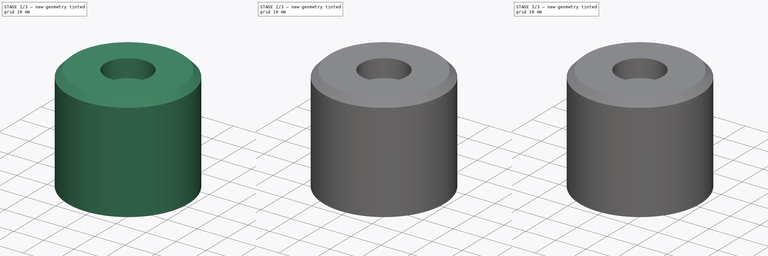
[diagram: build sequence overview — one tinted view per stage of 3, left to right]
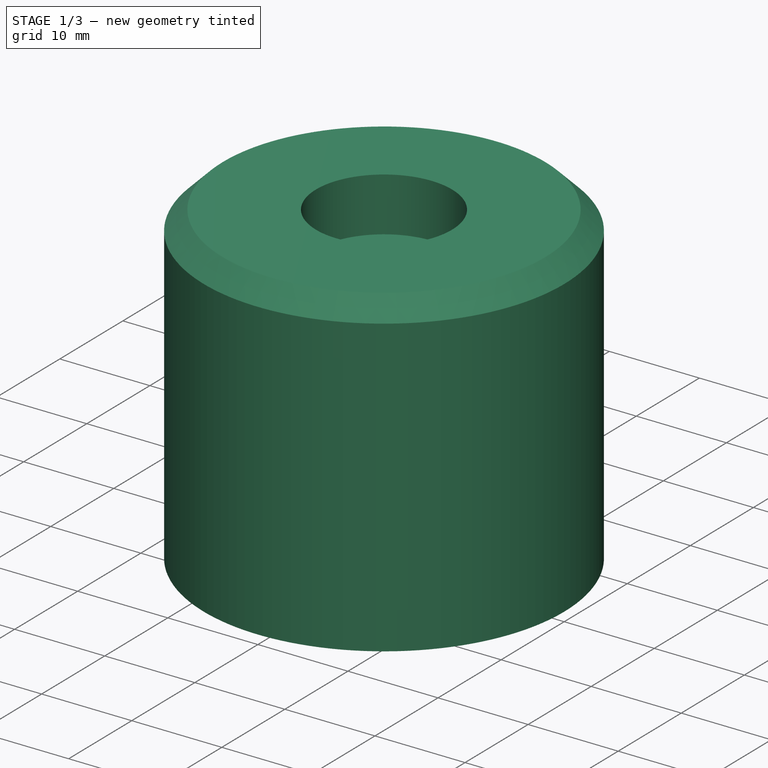
[diagram: stage 1 of 3 — iso view after this stage's code; geometry added in this stage tinted green]
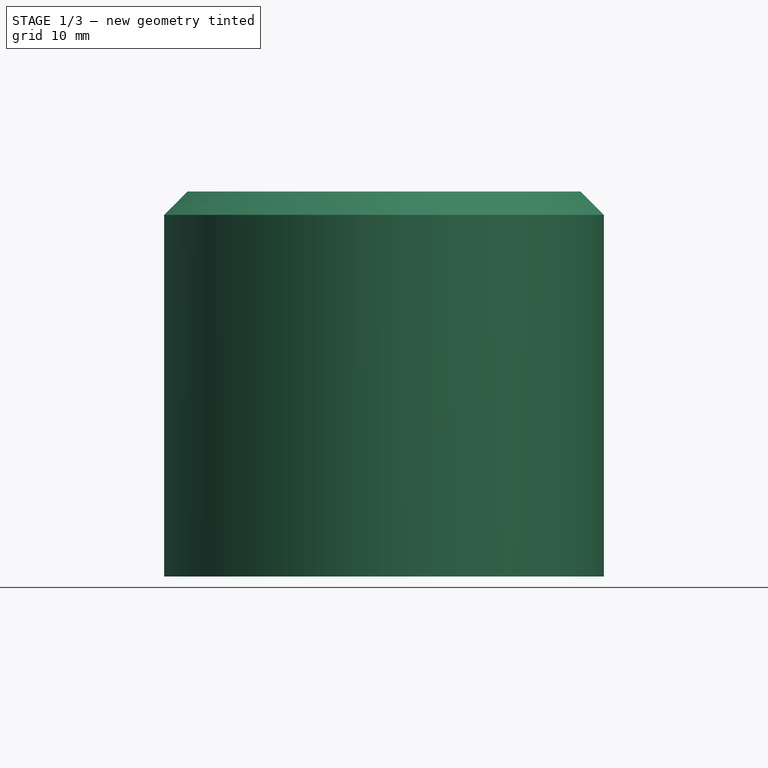
[diagram: stage 1 of 3 — front view after this stage's code; geometry added in this stage tinted green]
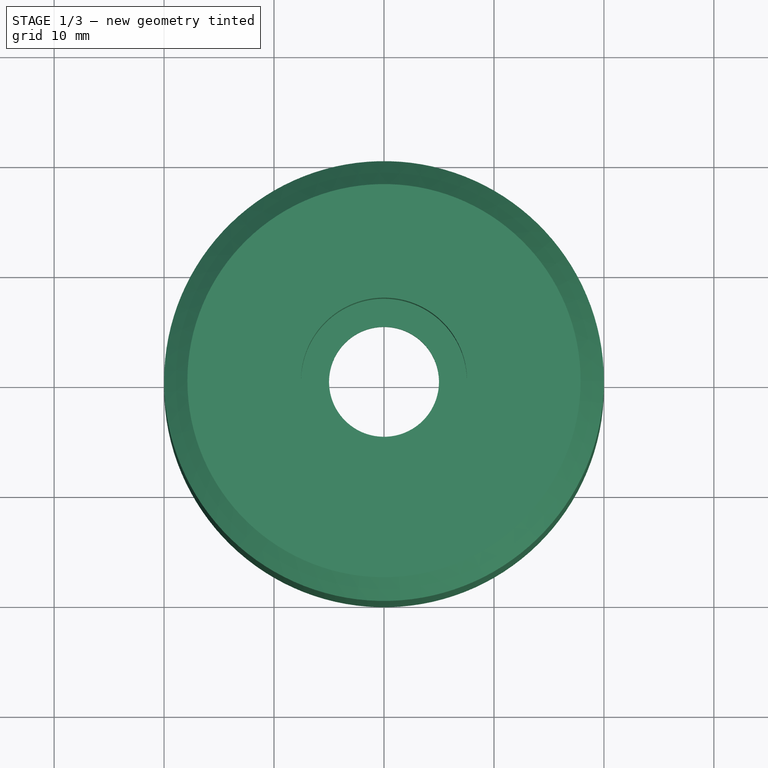
[diagram: stage 1 of 3 — top view after this stage's code; geometry added in this stage tinted green]
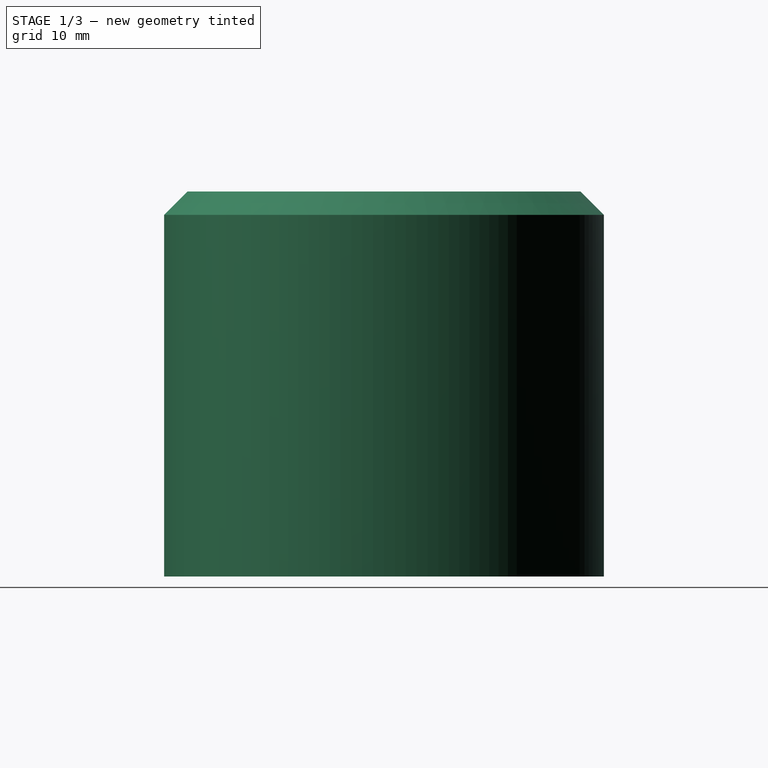
[diagram: stage 1 of 3 — right view after this stage's code; geometry added in this stage tinted green]
FCSTD DOCUMENT  (FreeCAD 0.19R24291 (Git))
Label: windSensorHousingv2
License: All rights reserved
LicenseURL: http://en.wikipedia.org/wiki/All_rights_reserved
objects: Sketcher::SketchObject×5, PartDesign::Plane×2, PartDesign::Pad×2, PartDesign::Pocket×2, PartDesign::Revolution×1, PartDesign::Chamfer×1, PartDesign::Body×1
note: 20 computed .brp shape members not serialized (recipe doc carries the construction recipe); baked Part::Feature solids carry a one-line shape summary decoded from their .brp

FEATURE [Sketcher::SketchObject] Sketch
  FullyConstrained = true
  MapMode = 5
  Placement = pos=(0,0,0) rot=(1,0,0;1.5708rad)
  Support = -> [XZ_Plane]
  sketch-geometry (16):
    g0: LineSegment StartX=18.5 StartY=0 StartZ=0 EndX=20 EndY=0 EndZ=0
    g1: LineSegment StartX=20 StartY=0 StartZ=0 EndX=20 EndY=32.8787 EndZ=0
    g2: LineSegment StartX=20 StartY=32.8787 StartZ=0 EndX=17.8787 EndY=35 EndZ=0
    g3: LineSegment StartX=17.8787 StartY=35 StartZ=0 EndX=7.55 EndY=35 EndZ=0
    g4: LineSegment StartX=7.55 StartY=35 StartZ=0 EndX=7.55 EndY=29 EndZ=0
    g5: LineSegment StartX=7.55 StartY=29 StartZ=0 EndX=5 EndY=29 EndZ=0
    g6: LineSegment StartX=5 StartY=29 StartZ=0 EndX=5 EndY=27.5 EndZ=0
    g7: LineSegment StartX=5 StartY=27.5 StartZ=0 EndX=9.05 EndY=27.5 EndZ=0
    g8: LineSegment StartX=9.05 StartY=27.5 StartZ=0 EndX=9.05 EndY=33.5 EndZ=0
    g9: LineSegment StartX=9.05 StartY=33.5 StartZ=0 EndX=17.2574 EndY=33.5 EndZ=0
    g10: LineSegment StartX=17.2574 StartY=33.5 StartZ=0 EndX=18.5 EndY=32.2574 EndZ=0
    g11: LineSegment StartX=18.5 StartY=32.2574 StartZ=0 EndX=18.5 EndY=0 EndZ=0
    g12: LineSegment StartX=7.55 StartY=29 StartZ=0 EndX=7.55 EndY=27.5 EndZ=0
    g13: LineSegment StartX=9.05 StartY=33.5 StartZ=0 EndX=7.55 EndY=33.5 EndZ=0
    g14: LineSegment StartX=18.2322 StartY=32.5251 StartZ=0 EndX=19.2929 EndY=33.5858 EndZ=0
    g15: LineSegment StartX=9.05 StartY=33.5 StartZ=0 EndX=9.05 EndY=35 EndZ=0
  constraints (48):
    c: PointOnObject(g0,g-1)
    c: PointOnObject(g0,g-1)
    c: Coincident(g1,g0)
    c: Vertical(g1)
    c: Coincident(g2,g1)
    c: Coincident(g3,g2)
    c: Horizontal(g3)
    c: Coincident(g4,g3)
    c: Vertical(g4)
    c: Coincident(g5,g4)
    c: Horizontal(g5)
    c: Coincident(g6,g5)
    c: Vertical(g6)
    c: Coincident(g7,g6)
    c: Horizontal(g7)
    c: Coincident(g8,g7)
    c: Vertical(g8)
    c: Coincident(g9,g8)
    c: Horizontal(g9)
    c: Coincident(g10,g9)
    c: Coincident(g11,g10)
    c: Coincident(g11,g0)
    c: Vertical(g11)
    c: Coincident(g12,g4)
    c: PointOnObject(g12,g7)
    c: Vertical(g12)
    c: Coincident(g13,g8)
    c: PointOnObject(g13,g4)
    c: Horizontal(g13)
    c: PointOnObject(g14,g10)
    c: Parallel(g10,g2)
    c: Perpendicular(g14,g2) = 1.5708
    c: Equal(g12,g13)
    c: Equal(g13,g14)
    c: Equal(g14,g0)
    c: DistanceY(g6,g6) = 1.5
    c: PointOnObject(g15,g3)
    c: Vertical(g15)
    c: Equal(g15,g13)
    c: DistanceY(g4,g4) = 6
    c: Angle(g10,g11) = 2.35619
    c: Distance(g2) = 3
    c: DistanceY(g0,g2) = 35
    c: DistanceX(g-1,g6) = 5
    c: DistanceX(g-1,g3) = 7.55
    c: DistanceX(g-1,g0) = 20
    c: Distance(g14,g2) = 2
    c: Coincident(g15,g8)
FEATURE [PartDesign::Revolution] Revolution
  Angle = 360
  Axis = (0,2e-16,1)
  Base = (0,0,0)
  Placement = pos=(0,0,0) rot=(1,0,0;1.5708rad)
  Profile = -> Sketch
  ReferenceAxis = -> Sketch [V_Axis]
  Reversed = true
FEATURE [PartDesign::Plane] DatumPlane
  AttachmentOffset = pos=(0,0,1) rot=(0,0,1;0rad)
  Length = 60
  MapMode = 45
  Placement = pos=(3e-16,2.12e-14,31.8715) rot=(0,1,0;3.14159rad)
  ResizeMode = 0
  Support = -> [Revolution]
  Width = 60
FEATURE [Sketcher::SketchObject] Sketch001
  FullyConstrained = true
  MapMode = 5
  Placement = pos=(3e-16,2.12e-14,31.8715) rot=(0,1,0;3.14159rad)
  Support = -> [DatumPlane]
  sketch-geometry (4):
    g0: ArcOfCircle CenterX=0 CenterY=0 CenterZ=0 NormalX=0 NormalY=0 NormalZ=1 AngleXU=0 Radius=18.5 StartAngle=5.86576 EndAngle=6.70061
    g1: LineSegment StartX=16.9115 StartY=7.5 StartZ=0 EndX=13.7115 EndY=7.5 EndZ=0
    g2: LineSegment StartX=13.7115 StartY=7.5 StartZ=0 EndX=13.7115 EndY=-7.5 EndZ=0
    g3: LineSegment StartX=13.7115 StartY=-7.5 StartZ=0 EndX=16.9115 EndY=-7.5 EndZ=0
  constraints (11):
    c: Coincident(g0,g-1)
    c: Horizontal(g1)
    c: Coincident(g2,g1)
    c: Coincident(g3,g2)
    c: Horizontal(g3)
    c: Symmetric(g2,g1,g-1)
    c: DistanceY(g2,g2) = 15
    c: DistanceX(g1,g1) = 3.2
    c: Radius(g0) = 18.5
    c: Coincident(g0,g3)
    c: Coincident(g0,g1)
FEATURE [PartDesign::Pad] Pad
  BaseFeature = -> Revolution
  Direction = (1,1,1)
  Length = 20
  Length2 = 100
  Placement = pos=(0,0,0) rot=(1,0,0;1.5708rad)
  Profile = -> Sketch001
  Type = 0
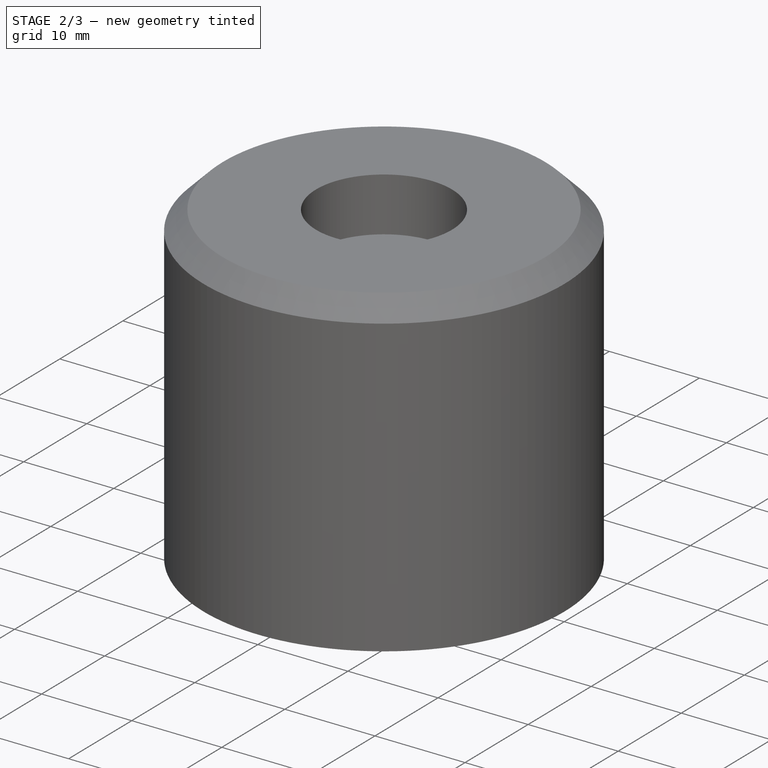
[diagram: stage 2 of 3 — iso view after this stage's code; geometry added in this stage tinted green]
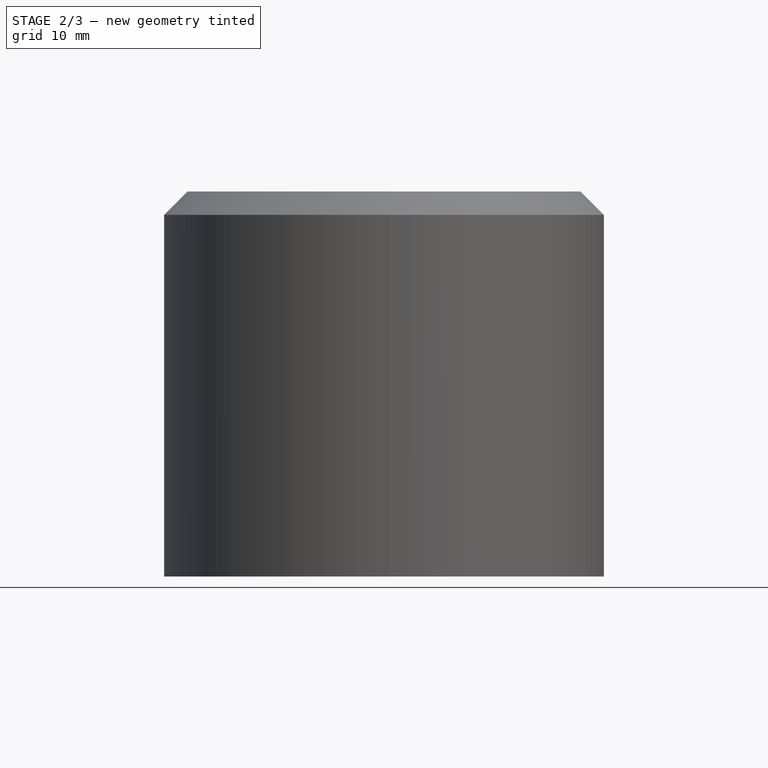
[diagram: stage 2 of 3 — front view after this stage's code; geometry added in this stage tinted green]
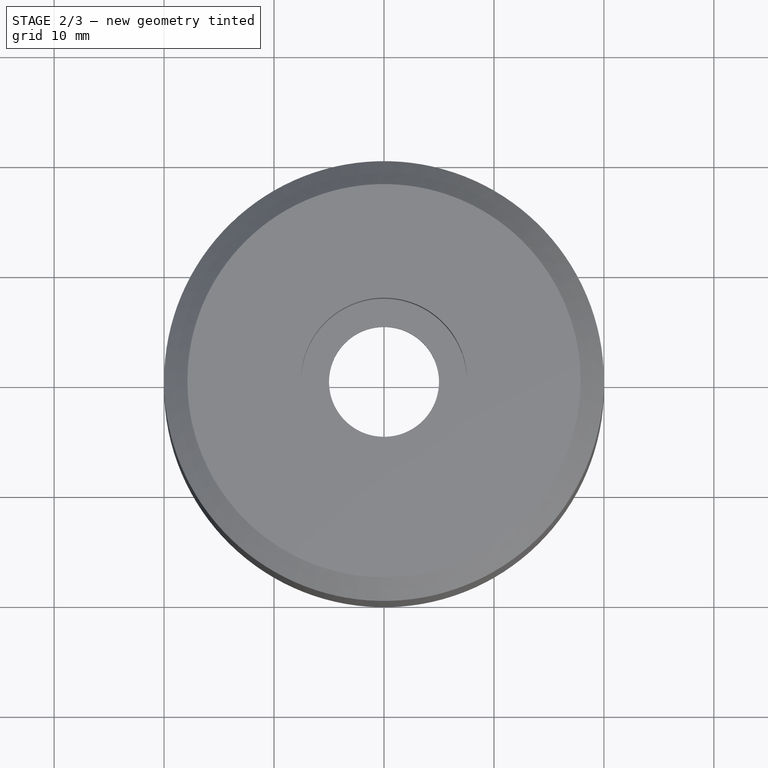
[diagram: stage 2 of 3 — top view after this stage's code; geometry added in this stage tinted green]
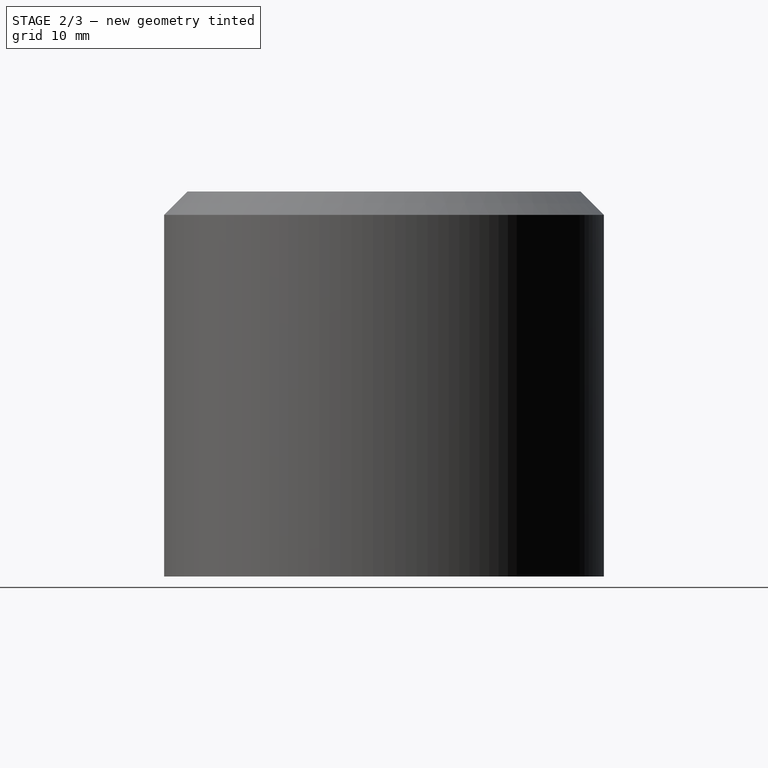
[diagram: stage 2 of 3 — right view after this stage's code; geometry added in this stage tinted green]
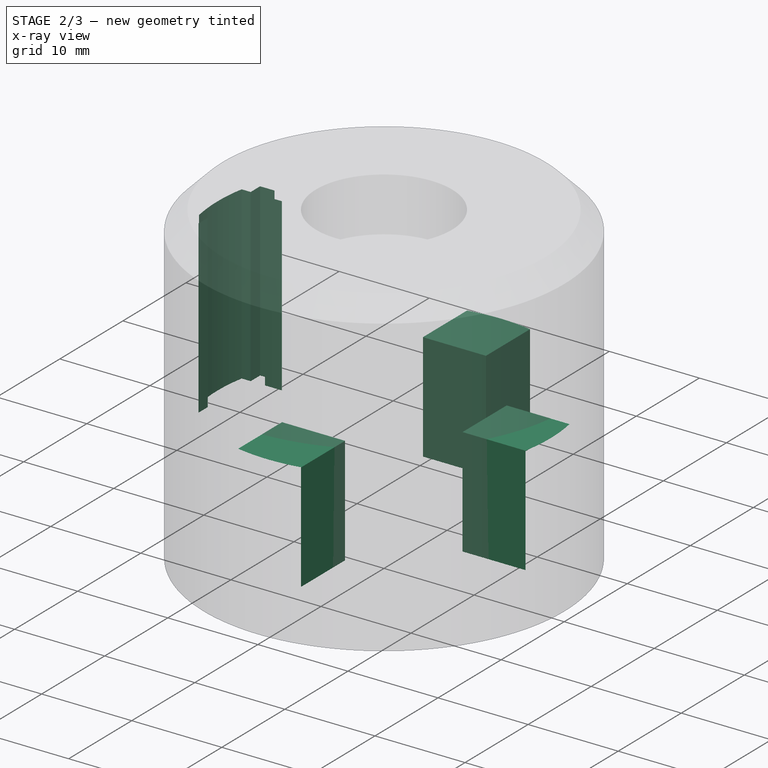
[diagram: stage 2 of 3 — x-ray composite at the iso view; earlier geometry ghosted, this stage's added geometry solid]
FEATURE [Sketcher::SketchObject] Sketch002
  FullyConstrained = true
  MapMode = 5
  Placement = pos=(0,1.37e-14,11.8715) rot=(1,0,0;3.14159rad)
  Support = -> [Pad]
  sketch-geometry (12):
    g0: ArcOfCircle CenterX=0 CenterY=0 CenterZ=0 NormalX=0 NormalY=0 NormalZ=1 AngleXU=0 Radius=18.5 StartAngle=2.95676 EndAngle=3.32643
    g1: LineSegment StartX=-18.1849 StartY=3.4 StartZ=0 EndX=-17.1849 EndY=3.4 EndZ=0
    g2: LineSegment StartX=-17.1849 StartY=3.4 StartZ=0 EndX=-17.1849 EndY=4.9 EndZ=0
    g3: LineSegment StartX=-17.1849 StartY=4.9 StartZ=0 EndX=-15.5849 EndY=4.9 EndZ=0
    g4: LineSegment StartX=-15.5849 StartY=4.9 StartZ=0 EndX=-15.5849 EndY=3.4 EndZ=0
    g5: LineSegment StartX=-15.5849 StartY=3.4 StartZ=0 EndX=-13.7 EndY=3.4 EndZ=0
    g6: LineSegment StartX=-13.7 StartY=3.4 StartZ=0 EndX=-13.7 EndY=-3.4 EndZ=0
    g7: LineSegment StartX=-18.1849 StartY=-3.4 StartZ=0 EndX=-17.1849 EndY=-3.4 EndZ=0
    g8: LineSegment StartX=-17.1849 StartY=-3.4 StartZ=0 EndX=-17.1849 EndY=-4.9 EndZ=0
    g9: LineSegment StartX=-17.1849 StartY=-4.9 StartZ=0 EndX=-15.5849 EndY=-4.9 EndZ=0
    g10: LineSegment StartX=-15.5849 StartY=-4.9 StartZ=0 EndX=-15.5849 EndY=-3.4 EndZ=0
    g11: LineSegment StartX=-15.5849 StartY=-3.4 StartZ=0 EndX=-13.7 EndY=-3.4 EndZ=0
  constraints (35):
    c: Coincident(g0,g-1)
    c: Radius(g0) = 18.5
    c: Horizontal(g1)
    c: Coincident(g2,g1)
    c: Vertical(g2)
    c: Coincident(g3,g2)
    c: Horizontal(g3)
    c: Coincident(g4,g3)
    c: Vertical(g4)
    c: Coincident(g5,g4)
    c: Horizontal(g5)
    c: Coincident(g6,g5)
    c: Vertical(g6)
    c: Horizontal(g7)
    c: Coincident(g8,g7)
    c: Vertical(g8)
    c: Coincident(g9,g8)
    c: Horizontal(g9)
    c: Coincident(g10,g9)
    c: Vertical(g10)
    c: Coincident(g11,g10)
    c: Coincident(g11,g6)
    c: Horizontal(g11)
    c: DistanceX(g3,g3) = 1.6
    c: Equal(g5,g11)
    c: Equal(g2,g4)
    c: Equal(g4,g8)
    c: Equal(g8,g10)
    c: DistanceX(g1,g1) = 1
    c: DistanceY(g4,g4) = 1.5
    c: Symmetric(g1,g7,g-1)
    c: DistanceY(g9,g3) = 9.8
    c: DistanceX(g6,g0) = 13.7
    c: Coincident(g0,g1)
    c: Coincident(g0,g7)
FEATURE [PartDesign::Pocket] Pocket
  BaseFeature = -> Pad
  Length = 19
  Length2 = 100
  Placement = pos=(0,0,0) rot=(1,0,0;1.5708rad)
  Profile = -> Sketch002
  Type = 0
FEATURE [PartDesign::Plane] DatumPlane001
  AttachmentOffset = pos=(0,0,5) rot=(0,0,1;0rad)
  Length = 60
  MapMode = 5
  Placement = pos=(0,7.8e-15,5) rot=(0,0,1;3.14159rad)
  ResizeMode = 0
  Support = -> [Pocket]
  Width = 60
FEATURE [Sketcher::SketchObject] Sketch003
  FullyConstrained = true
  MapMode = 5
  Placement = pos=(0,7.8e-15,5) rot=(0,0,1;3.14159rad)
  Support = -> [DatumPlane001]
  sketch-geometry (12):
    g0: ArcOfCircle CenterX=0 CenterY=0 CenterZ=0 NormalX=0 NormalY=0 NormalZ=1 AngleXU=0 Radius=18.5 StartAngle=1.38046 EndAngle=1.76113
    g1: LineSegment StartX=-3.5 StartY=18.1659 StartZ=0 EndX=-3.5 EndY=11.1659 EndZ=0
    g2: LineSegment StartX=-3.5 StartY=11.1659 StartZ=0 EndX=3.5 EndY=11.1659 EndZ=0
    g3: LineSegment StartX=3.5 StartY=11.1659 StartZ=0 EndX=3.5 EndY=18.1659 EndZ=0
    g4: LineSegment StartX=-18.1659 StartY=3.5 StartZ=0 EndX=-11.1659 EndY=3.5 EndZ=0
    g5: LineSegment StartX=-11.1659 StartY=3.5 StartZ=0 EndX=-11.1659 EndY=-3.5 EndZ=0
    g6: LineSegment StartX=-11.1659 StartY=-3.5 StartZ=0 EndX=-18.1659 EndY=-3.5 EndZ=0
    g7: LineSegment StartX=-3.5 StartY=-18.1659 StartZ=0 EndX=-3.5 EndY=-11.1659 EndZ=0
    g8: LineSegment StartX=-3.5 StartY=-11.1659 StartZ=0 EndX=3.5 EndY=-11.1659 EndZ=0
    g9: LineSegment StartX=3.5 StartY=-11.1659 StartZ=0 EndX=3.5 EndY=-18.1659 EndZ=0
    g10: ArcOfCircle CenterX=0 CenterY=0 CenterZ=0 NormalX=0 NormalY=0 NormalZ=1 AngleXU=0 Radius=18.5 StartAngle=2.95126 EndAngle=3.33193
    g11: ArcOfCircle CenterX=0 CenterY=0 CenterZ=0 NormalX=0 NormalY=0 NormalZ=1 AngleXU=0 Radius=18.5 StartAngle=4.52205 EndAngle=4.90273
  constraints (38):
    c: Coincident(g0,g-1)
    c: Radius(g0) = 18.5
    c: Vertical(g1)
    c: Coincident(g2,g1)
    c: Horizontal(g2)
    c: Coincident(g3,g2)
    c: Vertical(g3)
    c: Horizontal(g4)
    c: Coincident(g5,g4)
    c: Vertical(g5)
    c: Coincident(g6,g5)
    c: PointOnObject(g6,g0)
    c: Horizontal(g6)
    c: PointOnObject(g7,g0)
    c: Vertical(g7)
    c: Coincident(g8,g7)
    c: Horizontal(g8)
    c: Coincident(g9,g8)
    c: Vertical(g9)
    c: Equal(g6,g5)
    c: Equal(g5,g4)
    c: Equal(g4,g1)
    c: Equal(g1,g2)
    c: Equal(g2,g3)
    c: Equal(g3,g7)
    c: Equal(g7,g8)
    c: Equal(g8,g9)
    c: DistanceX(g2,g2) = 7
    c: Coincident(g0,g3)
    c: Coincident(g11,g9)
    c: Equal(g0,g10)
    c: Coincident(g0,g1)
    c: Coincident(g10,g4)
    c: Coincident(g0,g10)
    c: Equal(g10,g11)
    c: PointOnObject(g10,g6)
    c: PointOnObject(g11,g7)
    c: Coincident(g10,g11)
FEATURE [PartDesign::Pad] Pad001
  BaseFeature = -> Pocket
  Direction = (1,1,1)
  Length = 12
  Length2 = 100
  Placement = pos=(0,0,0) rot=(1,0,0;1.5708rad)
  Profile = -> Sketch003
  Type = 0
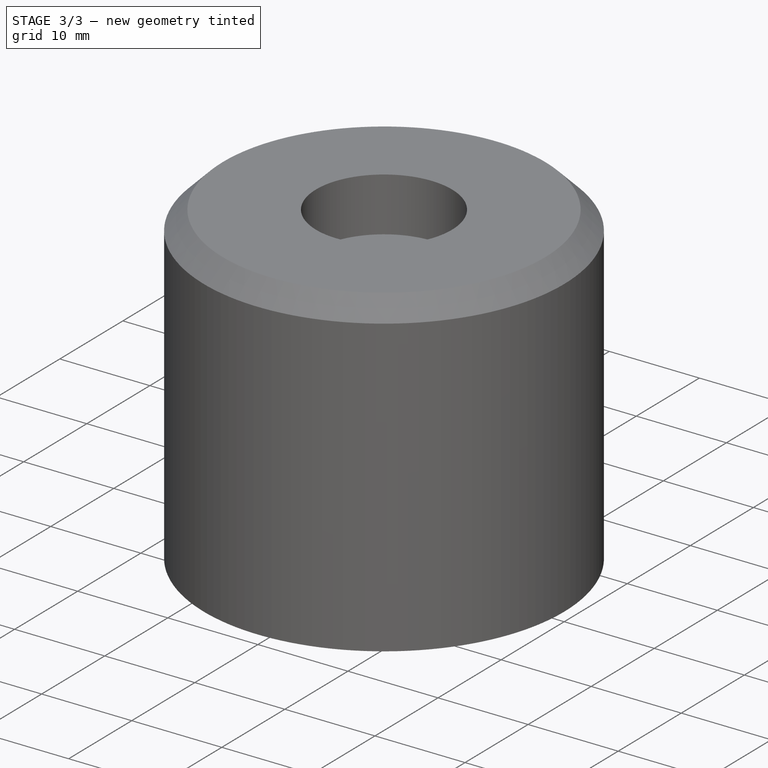
[diagram: stage 3 of 3 — iso view after this stage's code; geometry added in this stage tinted green]
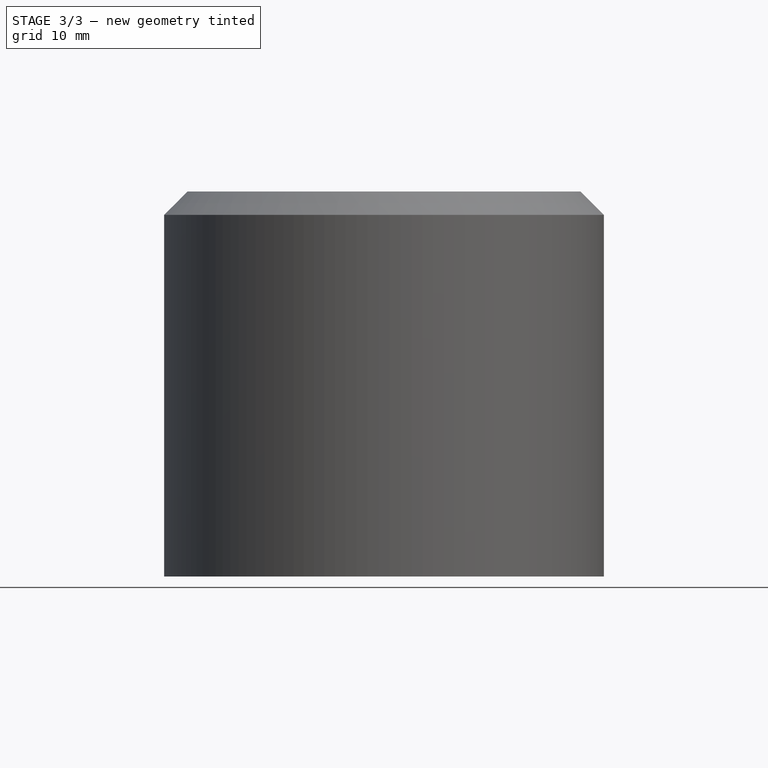
[diagram: stage 3 of 3 — front view after this stage's code; geometry added in this stage tinted green]
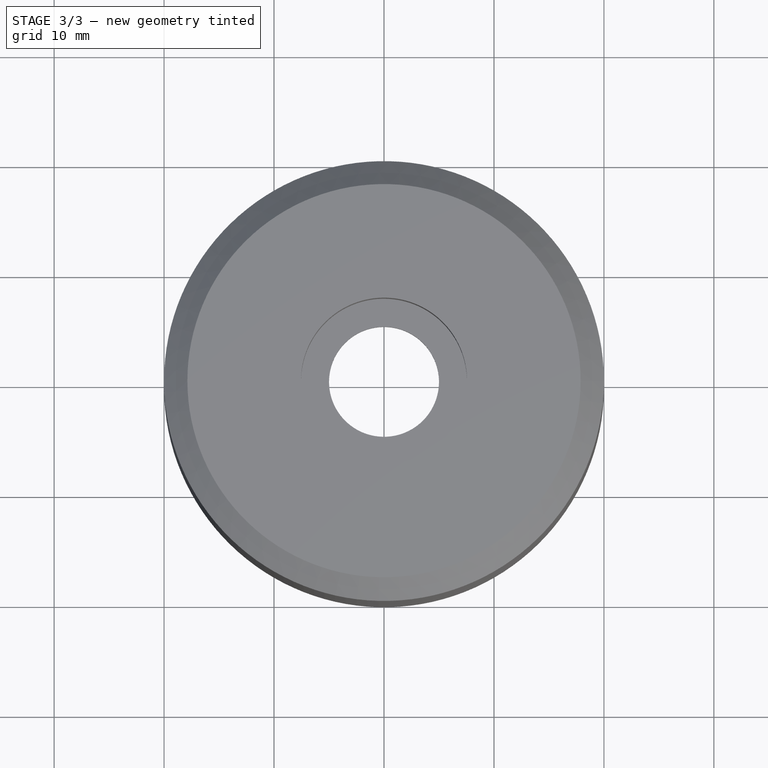
[diagram: stage 3 of 3 — top view after this stage's code; geometry added in this stage tinted green]
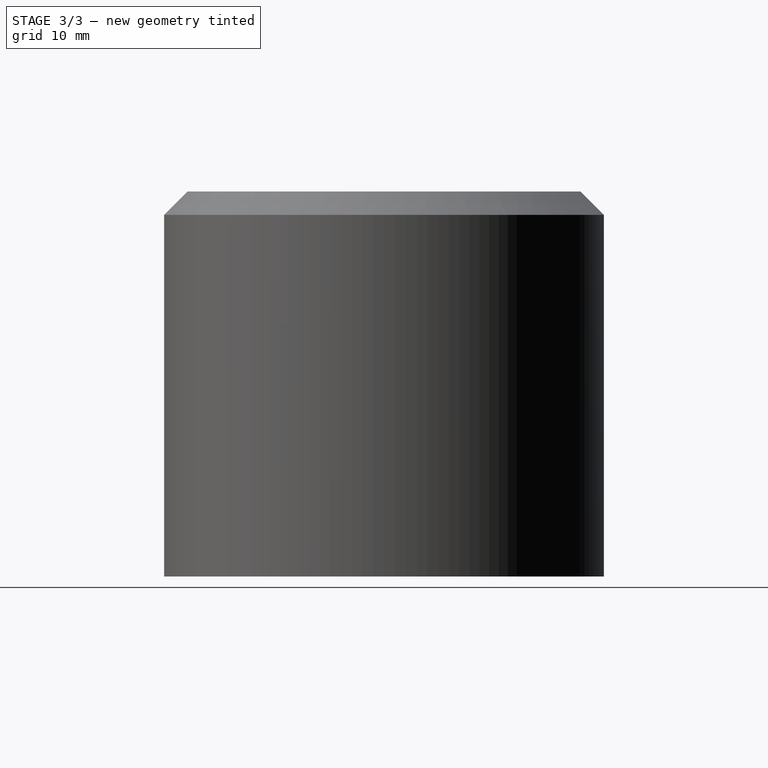
[diagram: stage 3 of 3 — right view after this stage's code; geometry added in this stage tinted green]
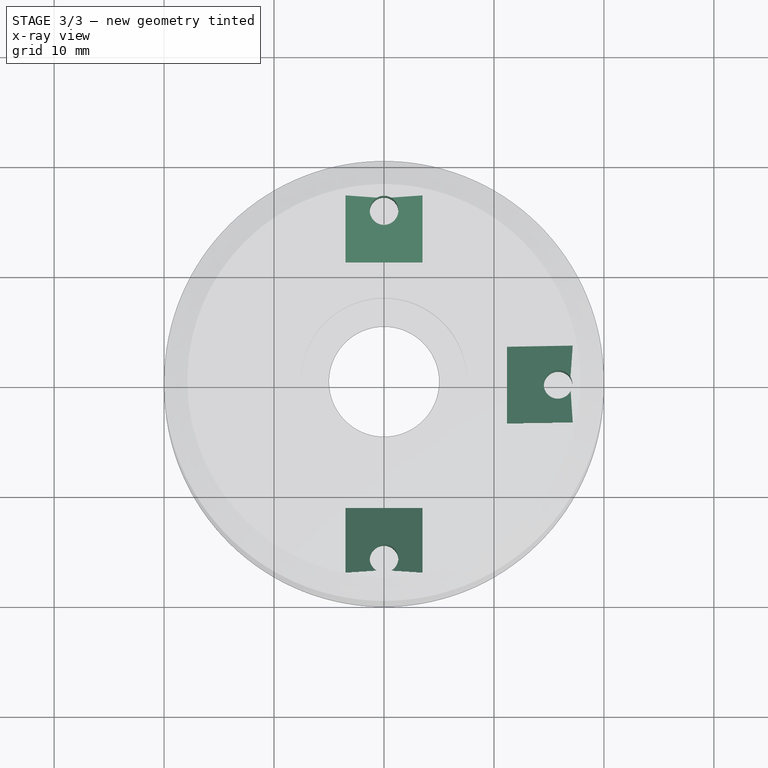
[diagram: stage 3 of 3 — x-ray composite at the top view; earlier geometry ghosted, this stage's added geometry solid]
FEATURE [PartDesign::Chamfer] Chamfer
  Angle = 45
  Base = -> Pad001 [Edge29,Edge65,Edge74]
  BaseFeature = -> Pad001
  ChamferType = 0
  FlipDirection = false
  Placement = pos=(0,0,0) rot=(1,0,0;1.5708rad)
  Size = 6
  Size2 = 1
  SupportTransform = false
FEATURE [Sketcher::SketchObject] Sketch004
  FullyConstrained = true
  MapMode = 5
  Placement = pos=(0,9.8e-15,5) rot=(1,0,0;3.14159rad)
  Support = -> [Chamfer]
  sketch-geometry (3):
    g0: Circle CenterX=0 CenterY=15.83 CenterZ=0 NormalX=0 NormalY=0 NormalZ=1 AngleXU=0 Radius=1.3
    g1: Circle CenterX=15.83 CenterY=0 CenterZ=0 NormalX=0 NormalY=0 NormalZ=1 AngleXU=0 Radius=1.3
    g2: Circle CenterX=0 CenterY=-15.83 CenterZ=0 NormalX=0 NormalY=0 NormalZ=1 AngleXU=0 Radius=1.3
  constraints (9):
    c: PointOnObject(g0,g-2)
    c: PointOnObject(g1,g-1)
    c: PointOnObject(g2,g-2)
    c: Equal(g0,g1)
    c: Equal(g1,g2)
    c: Radius(g0) = 1.3
    c: DistanceY(g2,g-1) = 15.83
    c: DistanceX(g-1,g1) = 15.83
    c: DistanceY(g-1,g0) = 15.83
FEATURE [PartDesign::Pocket] Pocket001
  BaseFeature = -> Chamfer
  Length = 12
  Length2 = 100
  Placement = pos=(0,0,0) rot=(1,0,0;1.5708rad)
  Profile = -> Sketch004
  Type = 0
FEATURE [PartDesign::Body] Body
  Group = -> [Sketch,Revolution,DatumPlane,Sketch001,Pad,Sketch002,Pocket,DatumPlane001,Sketch003,Pad001,Chamfer,Sketch004,Pocket001]
  Origin = -> Origin
  Tip = -> Pocket001
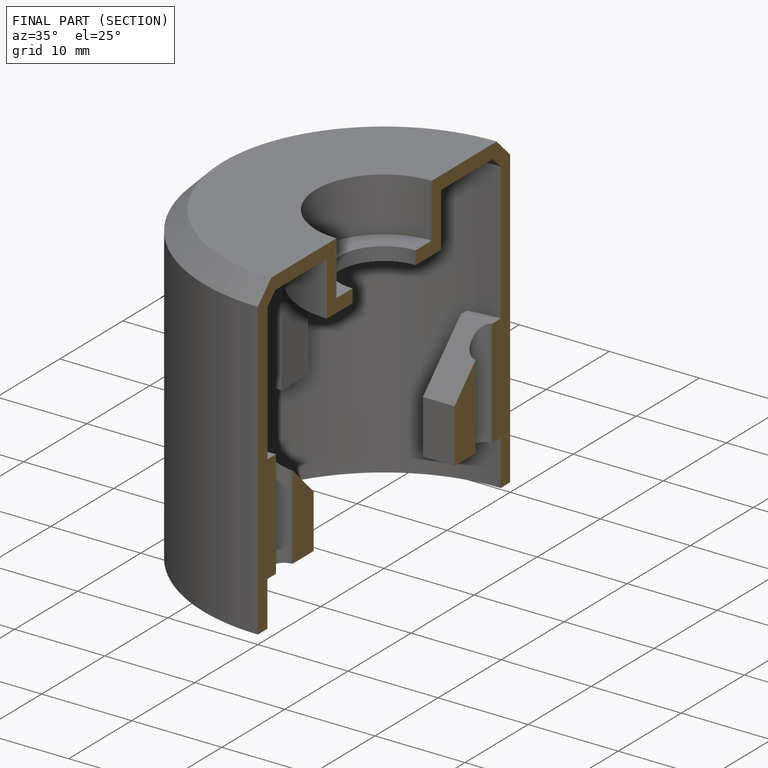
[diagram: finished part — half-section view (interior)]
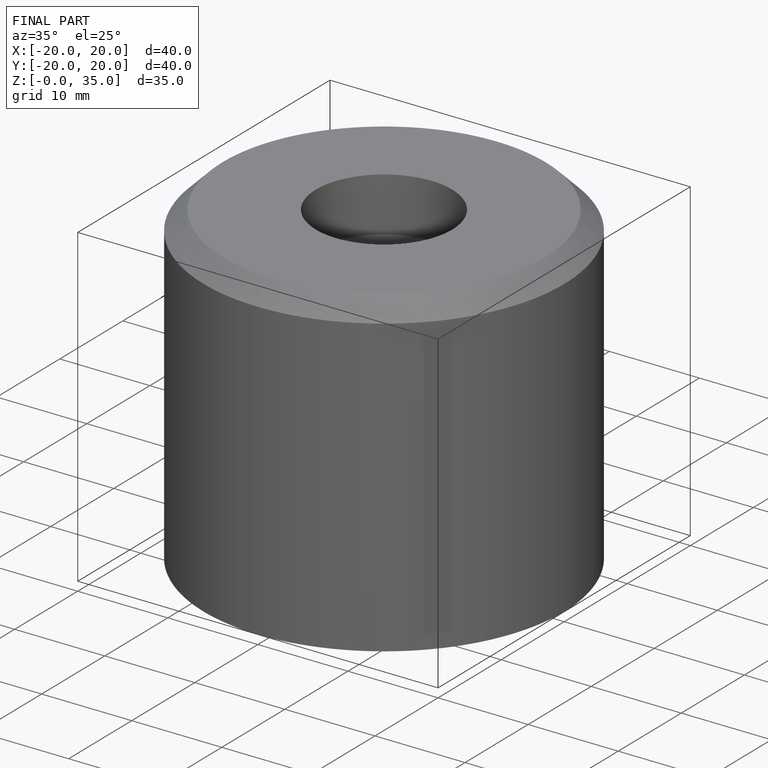
[diagram: finished part — iso view with bounding-box wireframe]
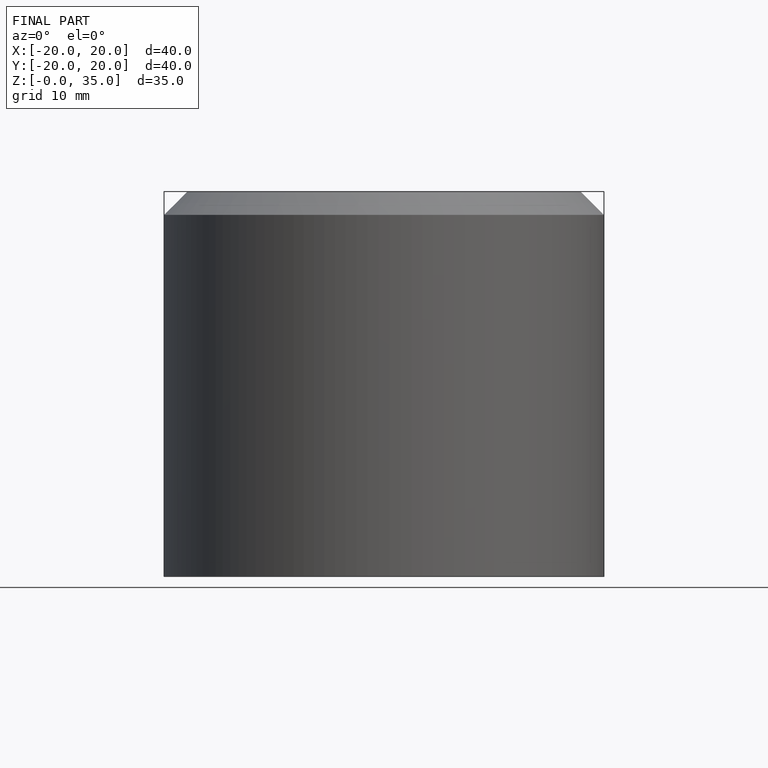
[diagram: finished part — front view with bounding-box wireframe]
